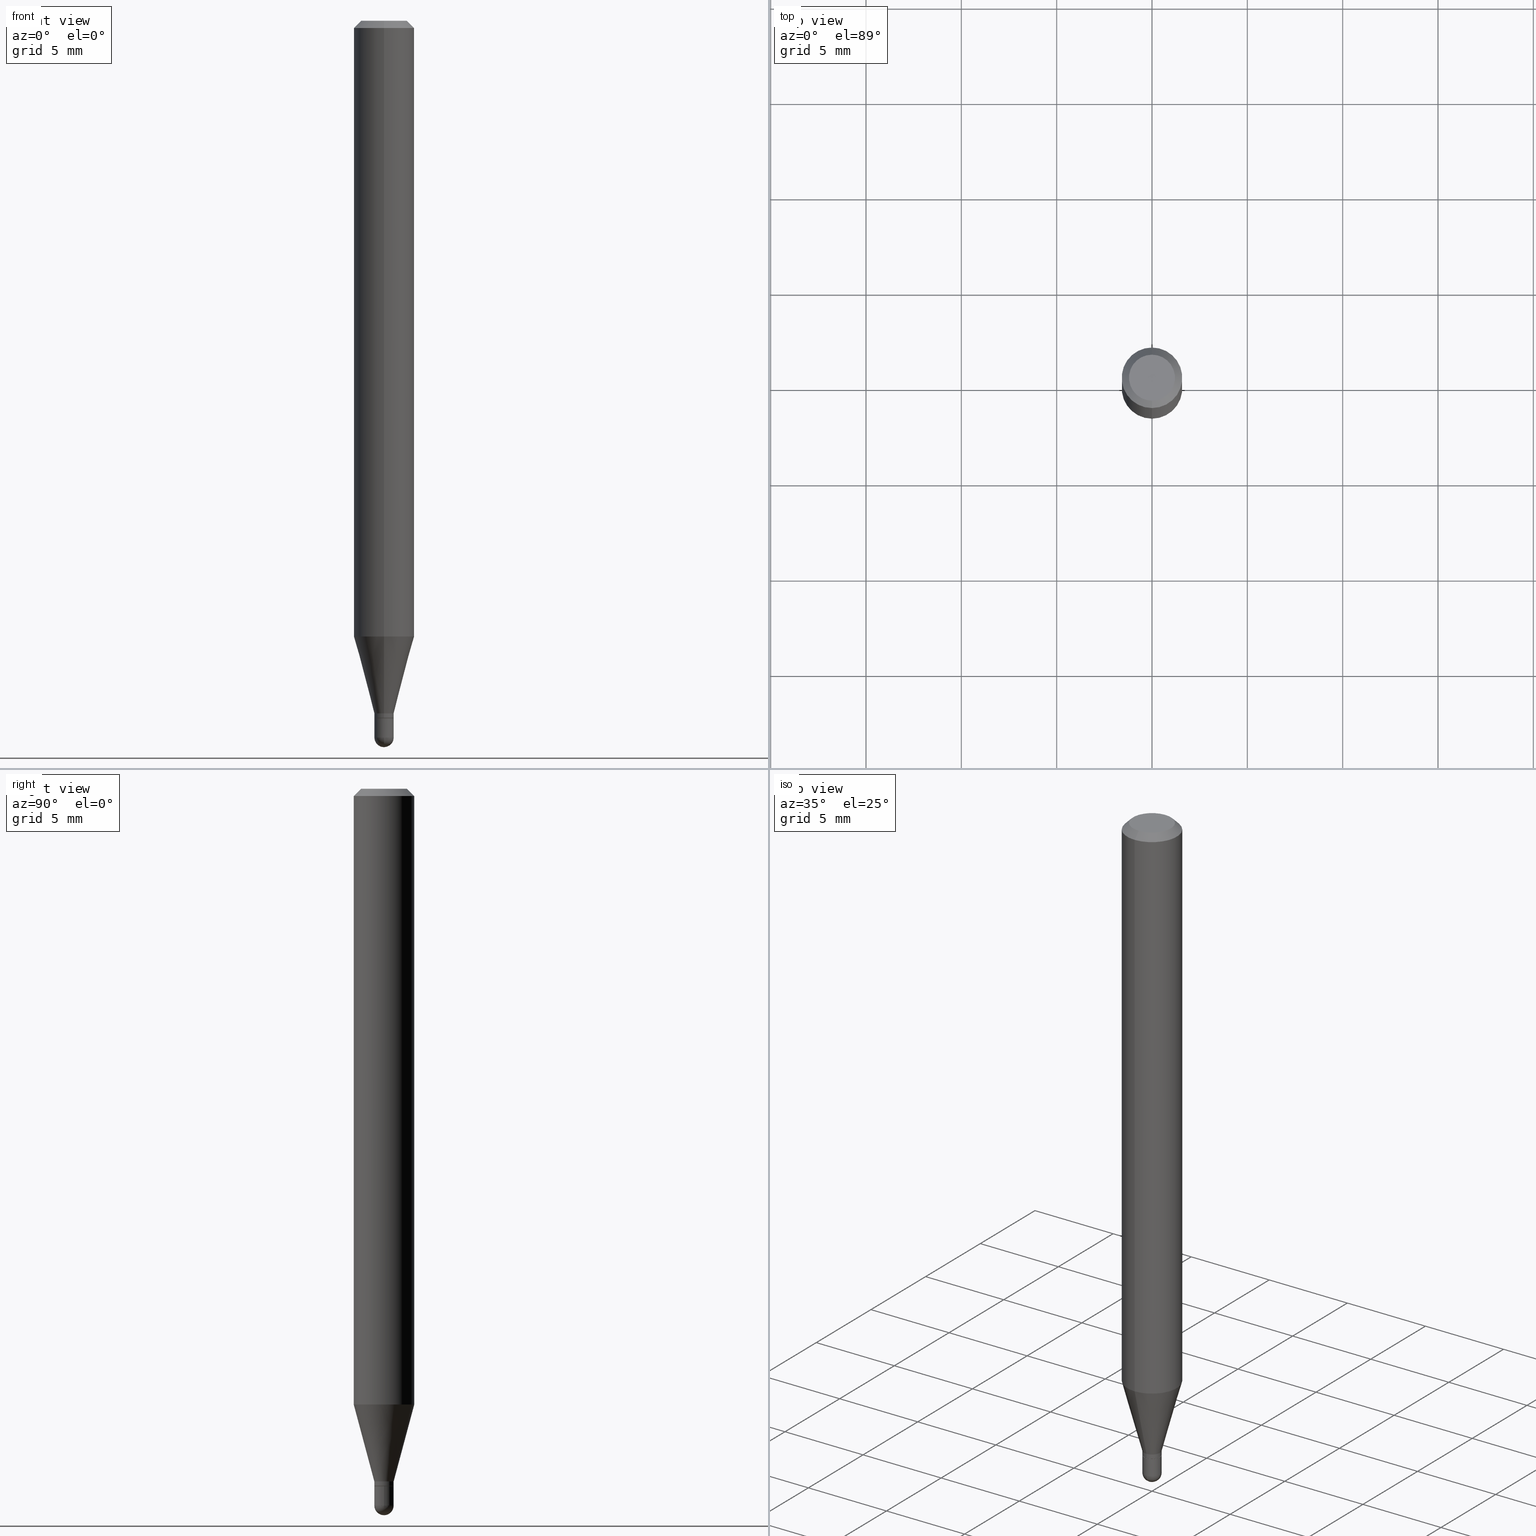
[diagram: canonical four-view strip — front | top / right | iso, engineering-drawing reading convention]
A machine part, canonical four-view strip (front | top / right | iso — engineering-drawing reading convention). The complete STEP part file that produces these views, byte-faithful:
ISO-10303-21;
HEADER;
FILE_DESCRIPTION (( 'STEP AP203' ),
    '1' );
FILE_NAME ('00704.STEP',
    '2024-03-07T18:04:11',
    ( '' ),
    ( '' ),
    'SwSTEP 2.0',
    'SolidWorks 2023',
    '' );
FILE_SCHEMA (( 'CONFIG_CONTROL_DESIGN' ));
ENDSEC;

DATA;
#1 = FACE_OUTER_BOUND ( 'NONE', #425, .T. ) ;
#2 = PRODUCT ( '00704', '00704', '', ( #97 ) ) ;
#3 = ORIENTED_EDGE ( 'NONE', *, *, #339, .T. ) ;
#4 = CARTESIAN_POINT ( 'NONE',  ( 3.521452961119763567E-29, -5.027764804727856594E-15, -1.440000000000000169 ) ) ;
#5 = EDGE_LOOP ( 'NONE', ( #103, #487, #40, #312 ) ) ;
#6 = CYLINDRICAL_SURFACE ( 'NONE', #8, 0.06250000000000000000 ) ;
#7 = DIRECTION ( 'NONE',  ( -6.982962677686265133E-15, -1.000000000000000000, 0.000000000000000000 ) ) ;
#8 = AXIS2_PLACEMENT_3D ( 'NONE', #75, #351, #357 ) ;
#9 = APPROVAL_PERSON_ORGANIZATION ( #66, #408, #27 ) ;
#10 = EDGE_LOOP ( 'NONE', ( #434, #107, #123, #349 ) ) ;
#11 = APPROVAL_DATE_TIME ( #93, #395 ) ;
#12 = DIRECTION ( 'NONE',  ( -2.445453445222057768E-29, 3.491503336616566334E-15, 1.000000000000000000 ) ) ;
#13 = CARTESIAN_POINT ( 'NONE',  ( -3.773273898774340269E-16, -0.04749999999999999362, 1.569871337916932575E-16 ) ) ;
#14 = CARTESIAN_POINT ( 'NONE',  ( 2.166494383139893179E-46, -3.093218716665086637E-32, -8.859274697593624976E-18 ) ) ;
#15 = ORIENTED_EDGE ( 'NONE', *, *, #494, .T. ) ;
#16 = DIRECTION ( 'NONE',  ( 4.937700262164548042E-15, 0.7071067811865451302, -0.7071067811865499042 ) ) ;
#17 = CC_DESIGN_PERSON_AND_ORGANIZATION_ASSIGNMENT ( #223, #33, ( #313 ) ) ;
#18 = VERTEX_POINT ( 'NONE', #424 ) ;
#19 = DIRECTION ( 'NONE',  ( -2.445468806185136597E-29, 3.491481338843145583E-15, 1.000000000000000000 ) ) ;
#20 = CONICAL_SURFACE ( 'NONE', #462, 0.01949999999999999997, 0.7853981633974739252 ) ;
#21 = DIRECTION ( 'NONE',  ( -2.445453445222057768E-29, 3.491503336616566334E-15, 1.000000000000000000 ) ) ;
#22 = UNCERTAINTY_MEASURE_WITH_UNIT (LENGTH_MEASURE( 1.000000000000000082E-05 ), #213, 'distance_accuracy_value', 'NONE');
#23 = EDGE_CURVE ( 'NONE', #127, #438, #104, .T. ) ;
#24 = CLOSED_SHELL ( 'NONE', ( #73, #364, #28, #152, #35 ) ) ;
#25 = AXIS2_PLACEMENT_3D ( 'NONE', #445, #49, #198 ) ;
#26 = APPROVAL_PERSON_ORGANIZATION ( #347, #310, #142 ) ;
#27 = APPROVAL_ROLE ( '' ) ;
#28 = ADVANCED_FACE ( 'NONE', ( #267 ), #176, .F. ) ;
#29 = FACE_OUTER_BOUND ( 'NONE', #450, .T. ) ;
#30 = EDGE_LOOP ( 'NONE', ( #89, #79, #468, #245 ) ) ;
#31 = VECTOR ( 'NONE', #314, 39.37007874015748143 ) ;
#32 = AXIS2_PLACEMENT_3D ( 'NONE', #293, #54, #495 ) ;
#33 = PERSON_AND_ORGANIZATION_ROLE ( 'classification_officer' ) ;
#34 = PERSON ( 'UNSPECIFIED', 'UNSPECIFIED', 'UNSPECIFIED', ('UNSPECIFIED'), ('UNSPECIFIED'), ('UNSPECIFIED') ) ;
#35 = ADVANCED_FACE ( 'NONE', ( #502 ), #348, .T. ) ;
#36 = PERSON_AND_ORGANIZATION ( #34, #225 ) ;
#37 = DIRECTION ( 'NONE',  ( 1.000000000000000000, -6.982962677686265922E-15, 4.876176775795935793E-29 ) ) ;
#38 = CARTESIAN_POINT ( 'NONE',  ( 4.440892098500938748E-16, 0.06249999999999995143, -0.01500000000000022669 ) ) ;
#39 = EDGE_CURVE ( 'NONE', #203, #399, #302, .T. ) ;
#40 = ORIENTED_EDGE ( 'NONE', *, *, #110, .F. ) ;
#41 = CARTESIAN_POINT ( 'NONE',  ( 2.930988785010741768E-16, 0.01999999999999492462, -1.429999999999999938 ) ) ;
#42 = ORIENTED_EDGE ( 'NONE', *, *, #457, .T. ) ;
#43 = EDGE_CURVE ( 'NONE', #182, #509, #508, .T. ) ;
#44 = DIRECTION ( 'NONE',  ( 1.000000000000000000, -6.982962677686284065E-15, 0.000000000000000000 ) ) ;
#45 = LINE ( 'NONE', #458, #216 ) ;
#46 = EDGE_LOOP ( 'NONE', ( #304, #500, #161, #389 ) ) ;
#47 = DIRECTION ( 'NONE',  ( -2.445453445222057488E-29, 3.491503336616566334E-15, 1.000000000000000000 ) ) ;
#48 = DIRECTION ( 'NONE',  ( -6.982962677686265133E-15, -1.000000000000000000, 0.000000000000000000 ) ) ;
#49 = DIRECTION ( 'NONE',  ( -2.445468806185136597E-29, 3.491481338843145583E-15, 1.000000000000000000 ) ) ;
#50 = VECTOR ( 'NONE', #329, 39.37007874015748143 ) ;
#51 = CC_DESIGN_APPROVAL ( #395, ( #313 ) ) ;
#52 = ORIENTED_EDGE ( 'NONE', *, *, #39, .F. ) ;
#53 = CARTESIAN_POINT ( 'NONE',  ( 4.440892098500625669E-16, 0.06250000000000000000, -2.182189585385353959E-16 ) ) ;
#54 = DIRECTION ( 'NONE',  ( -2.445453445222057768E-29, 3.491503336616566334E-15, 1.000000000000000000 ) ) ;
#55 = ORIENTED_EDGE ( 'NONE', *, *, #414, .T. ) ;
#56 = DIRECTION ( 'NONE',  ( 6.982962677686265922E-15, 1.000000000000000000, -3.491503336616566334E-15 ) ) ;
#57 = COORDINATED_UNIVERSAL_TIME_OFFSET ( 5, 0, .BEHIND. ) ;
#58 = FACE_OUTER_BOUND ( 'NONE', #405, .T. ) ;
#59 =( GEOMETRIC_REPRESENTATION_CONTEXT ( 3 ) GLOBAL_UNCERTAINTY_ASSIGNED_CONTEXT ( ( #22 ) ) GLOBAL_UNIT_ASSIGNED_CONTEXT ( ( #213, #61, #296 ) ) REPRESENTATION_CONTEXT ( 'NONE', 'WORKASPACE' ) );
#60 = ADVANCED_FACE ( 'NONE', ( #29 ), #173, .T. ) ;
#61 =( NAMED_UNIT ( * ) PLANE_ANGLE_UNIT ( ) SI_UNIT ( $, .RADIAN. ) );
#62 = CARTESIAN_POINT ( 'NONE',  ( 3.521452961119763567E-29, -5.027764804727856594E-15, -1.440000000000000169 ) ) ;
#63 = AXIS2_PLACEMENT_3D ( 'NONE', #390, #215, #135 ) ;
#64 = AXIS2_PLACEMENT_3D ( 'NONE', #287, #454, #165 ) ;
#65 = EDGE_CURVE ( 'NONE', #189, #399, #272, .T. ) ;
#66 = PERSON_AND_ORGANIZATION ( #34, #225 ) ;
#67 = CARTESIAN_POINT ( 'NONE',  ( 2.166494383139893179E-46, -3.093218716665086637E-32, -8.859274697593624976E-18 ) ) ;
#68 = CYLINDRICAL_SURFACE ( 'NONE', #138, 0.06250000000000000000 ) ;
#69 = DATE_AND_TIME ( #179, #297 ) ;
#70 = ORIENTED_EDGE ( 'NONE', *, *, #414, .F. ) ;
#71 = AXIS2_PLACEMENT_3D ( 'NONE', #158, #292, #419 ) ;
#72 = PERSON_AND_ORGANIZATION_ROLE ( 'creator' ) ;
#73 = ADVANCED_FACE ( 'NONE', ( #481 ), #108, .T. ) ;
#74 = DIRECTION ( 'NONE',  ( -2.445453445222057768E-29, 3.491503336616566334E-15, 1.000000000000000000 ) ) ;
#75 = CARTESIAN_POINT ( 'NONE',  ( 0.000000000000000000, 0.000000000000000000, 0.000000000000000000 ) ) ;
#76 = ORIENTED_EDGE ( 'NONE', *, *, #259, .T. ) ;
#77 = EDGE_CURVE ( 'NONE', #331, #141, #378, .T. ) ;
#78 = DIRECTION ( 'NONE',  ( 1.000000000000000000, -6.982962677686284065E-15, 0.000000000000000000 ) ) ;
#79 = ORIENTED_EDGE ( 'NONE', *, *, #447, .T. ) ;
#80 = CARTESIAN_POINT ( 'NONE',  ( 3.521475080906597305E-29, -5.027733127934130649E-15, -1.440000000000000169 ) ) ;
#81 = ORIENTED_EDGE ( 'NONE', *, *, #464, .T. ) ;
#82 = CARTESIAN_POINT ( 'NONE',  ( -1.361677722148469565E-16, -0.01950000000000502720, -1.440000000000000169 ) ) ;
#83 = CARTESIAN_POINT ( 'NONE',  ( -1.421085471519839497E-16, -0.02000000000000519071, -1.479999999999999982 ) ) ;
#84 = ORIENTED_EDGE ( 'NONE', *, *, #460, .F. ) ;
#85 = CARTESIAN_POINT ( 'NONE',  ( 0.02000000000000000042, -5.167392381487856456E-15, -1.440000000000000169 ) ) ;
#86 = CARTESIAN_POINT ( 'NONE',  ( 3.617583500575643027E-29, -5.169841675086150023E-15, -1.479999999999999982 ) ) ;
#87 = CIRCLE ( 'NONE', #379, 0.01949999999999999997 ) ;
#88 = CC_DESIGN_APPROVAL ( #408, ( #129 ) ) ;
#89 = ORIENTED_EDGE ( 'NONE', *, *, #206, .F. ) ;
#90 = DIRECTION ( 'NONE',  ( -1.000000000000000000, 7.105427357601001070E-15, -4.926315508542082329E-29 ) ) ;
#91 = DIRECTION ( 'NONE',  ( -2.445453445222058048E-29, 3.491503336616566334E-15, 1.000000000000000000 ) ) ;
#92 = CARTESIAN_POINT ( 'NONE',  ( 3.617583500575643027E-29, -5.169841675086150023E-15, -1.479999999999999982 ) ) ;
#93 = DATE_AND_TIME ( #294, #472 ) ;
#94 = CARTESIAN_POINT ( 'NONE',  ( -1.396592535536897664E-16, -0.02000000000000491315, -1.429999999999999938 ) ) ;
#95 = EDGE_CURVE ( 'NONE', #141, #331, #510, .T. ) ;
#96 = AXIS2_PLACEMENT_3D ( 'NONE', #354, #277, #233 ) ;
#97 = MECHANICAL_CONTEXT ( 'NONE', #172, 'mechanical' ) ;
#98 = ADVANCED_FACE ( 'NONE', ( #147 ), #208, .T. ) ;
#99 = APPLICATION_PROTOCOL_DEFINITION ( 'international standard', 'config_control_design', 1994, #172 ) ;
#100 = AXIS2_PLACEMENT_3D ( 'NONE', #254, #162, #7 ) ;
#101 = CARTESIAN_POINT ( 'NONE',  ( -1.361677722148469565E-16, -0.01950000000000502720, -1.440000000000000169 ) ) ;
#102 = ORIENTED_EDGE ( 'NONE', *, *, #386, .T. ) ;
#103 = ORIENTED_EDGE ( 'NONE', *, *, #464, .F. ) ;
#104 = CIRCLE ( 'NONE', #406, 0.04749999999999999362 ) ;
#105 = CONICAL_SURFACE ( 'NONE', #422, 0.01999999999999992062, 0.2617993877991506846 ) ;
#106 = COORDINATED_UNIVERSAL_TIME_OFFSET ( 5, 0, .BEHIND. ) ;
#107 = ORIENTED_EDGE ( 'NONE', *, *, #308, .T. ) ;
#108 = CYLINDRICAL_SURFACE ( 'NONE', #136, 0.02000000000000000042 ) ;
#109 = EDGE_LOOP ( 'NONE', ( #475, #427, #503, #483 ) ) ;
#110 = EDGE_CURVE ( 'NONE', #269, #442, #166, .T. ) ;
#111 = CARTESIAN_POINT ( 'NONE',  ( -4.364351673553605587E-16, -0.06250000000000445477, -1.271387840678323000 ) ) ;
#112 = ORIENTED_EDGE ( 'NONE', *, *, #420, .T. ) ;
#113 = AXIS2_PLACEMENT_3D ( 'NONE', #396, #197, #479 ) ;
#114 = AXIS2_PLACEMENT_3D ( 'NONE', #235, #392, #402 ) ;
#115 = DIRECTION ( 'NONE',  ( -2.445468806185136597E-29, 3.491481338843145583E-15, 1.000000000000000000 ) ) ;
#116 = ORIENTED_EDGE ( 'NONE', *, *, #421, .F. ) ;
#117 = FACE_OUTER_BOUND ( 'NONE', #30, .T. ) ;
#118 = LINE ( 'NONE', #128, #174 ) ;
#119 = ORIENTED_EDGE ( 'NONE', *, *, #436, .F. ) ;
#120 = CARTESIAN_POINT ( 'NONE',  ( -1.396592535537247721E-16, -0.01999999999999992409, 6.983006673233105945E-17 ) ) ;
#121 = LINE ( 'NONE', #184, #155 ) ;
#122 = CARTESIAN_POINT ( 'NONE',  ( 3.667348042988525507E-29, -5.238446655063865749E-15, -1.500000000000000222 ) ) ;
#123 = ORIENTED_EDGE ( 'NONE', *, *, #417, .T. ) ;
#124 = DIRECTION ( 'NONE',  ( -2.445453445222057768E-29, 3.491503336616566334E-15, 1.000000000000000000 ) ) ;
#125 = DIRECTION ( 'NONE',  ( -1.000000000000000000, 6.982962677686265922E-15, -4.883557194083112340E-29 ) ) ;
#126 = VECTOR ( 'NONE', #170, 39.37007874015748143 ) ;
#127 = VERTEX_POINT ( 'NONE', #13 ) ;
#128 = CARTESIAN_POINT ( 'NONE',  ( 1.385558334732547143E-16, 0.01949999999999496927, -1.440000000000000169 ) ) ;
#129 = PRODUCT_DEFINITION ( 'UNKNOWN', '', #452, #288 ) ;
#130 = DIRECTION ( 'NONE',  ( -6.982962677686266711E-15, -1.000000000000000000, 3.491503336616566334E-15 ) ) ;
#131 = VECTOR ( 'NONE', #324, 39.37007874015748143 ) ;
#132 = AXIS2_PLACEMENT_3D ( 'NONE', #156, #400, #441 ) ;
#133 = AXIS2_PLACEMENT_3D ( 'NONE', #341, #171, #305 ) ;
#134 = PERSON_AND_ORGANIZATION ( #34, #225 ) ;
#135 = DIRECTION ( 'NONE',  ( 1.000000000000000000, -6.982962677686265922E-15, 4.876176775795935793E-29 ) ) ;
#136 = AXIS2_PLACEMENT_3D ( 'NONE', #365, #439, #37 ) ;
#137 = ORIENTED_EDGE ( 'NONE', *, *, #429, .F. ) ;
#138 = AXIS2_PLACEMENT_3D ( 'NONE', #220, #426, #301 ) ;
#139 = DIRECTION ( 'NONE',  ( -6.982962677686264344E-15, -1.000000000000000000, 0.000000000000000000 ) ) ;
#140 = CALENDAR_DATE ( 2024, 7, 3 ) ;
#141 = VERTEX_POINT ( 'NONE', #474 ) ;
#142 = APPROVAL_ROLE ( '' ) ;
#143 = CARTESIAN_POINT ( 'NONE',  ( -4.364351673553916201E-16, -0.06250000000000000000, 2.182189585385353959E-16 ) ) ;
#144 = VERTEX_POINT ( 'NONE', #38 ) ;
#145 = CIRCLE ( 'NONE', #32, 0.06250000000000000000 ) ;
#146 = CC_DESIGN_SECURITY_CLASSIFICATION ( #313, ( #452 ) ) ;
#147 = FACE_OUTER_BOUND ( 'NONE', #46, .T. ) ;
#148 = ORIENTED_EDGE ( 'NONE', *, *, #499, .F. ) ;
#149 = EDGE_CURVE ( 'NONE', #465, #141, #437, .T. ) ;
#150 = DIRECTION ( 'NONE',  ( -2.445468806185136597E-29, 3.491481338843145583E-15, 1.000000000000000000 ) ) ;
#151 = ORIENTED_EDGE ( 'NONE', *, *, #43, .F. ) ;
#152 = ADVANCED_FACE ( 'NONE', ( #359 ), #275, .T. ) ;
#153 = DIRECTION ( 'NONE',  ( -2.445453445222057768E-29, 3.491503336616566334E-15, 1.000000000000000000 ) ) ;
#154 = ORIENTED_EDGE ( 'NONE', *, *, #110, .T. ) ;
#155 = VECTOR ( 'NONE', #511, 39.37007874015748143 ) ;
#156 = CARTESIAN_POINT ( 'NONE',  ( 3.668180167833088946E-31, -5.237255004924852262E-17, -0.01500000000000000812 ) ) ;
#157 = ORIENTED_EDGE ( 'NONE', *, *, #149, .F. ) ;
#158 = CARTESIAN_POINT ( 'NONE',  ( 3.496998426667542866E-29, -4.992849771361689794E-15, -1.429999999999999938 ) ) ;
#159 = ADVANCED_FACE ( 'NONE', ( #1 ), #6, .T. ) ;
#160 = DIRECTION ( 'NONE',  ( -6.982962677686264344E-15, -1.000000000000000000, 0.000000000000000000 ) ) ;
#161 = ORIENTED_EDGE ( 'NONE', *, *, #39, .T. ) ;
#162 = DIRECTION ( 'NONE',  ( -2.445453445222057768E-29, 3.491503336616566334E-15, 1.000000000000000000 ) ) ;
#163 = EDGE_LOOP ( 'NONE', ( #271, #282 ) ) ;
#164 = COORDINATED_UNIVERSAL_TIME_OFFSET ( 5, 0, .BEHIND. ) ;
#165 = DIRECTION ( 'NONE',  ( 6.982962677686265922E-15, 1.000000000000000000, -3.483106191921935554E-15 ) ) ;
#166 = CIRCLE ( 'NONE', #253, 0.02000000000000000389 ) ;
#167 = CARTESIAN_POINT ( 'NONE',  ( 0.02000000000000000042, -1.396592535537253145E-16, 9.752353551591871936E-31 ) ) ;
#168 = AXIS2_PLACEMENT_3D ( 'NONE', #409, #124, #368 ) ;
#169 = EDGE_CURVE ( 'NONE', #189, #199, #121, .T. ) ;
#170 = DIRECTION ( 'NONE',  ( -2.445453445222058048E-29, 3.491503336616566334E-15, 1.000000000000000000 ) ) ;
#171 = DIRECTION ( 'NONE',  ( -2.445453445222057768E-29, 3.491503336616566334E-15, 1.000000000000000000 ) ) ;
#172 = APPLICATION_CONTEXT ( 'configuration controlled 3d designs of mechanical parts and assemblies' ) ;
#173 = CONICAL_SURFACE ( 'NONE', #309, 0.01999999999999992062, 0.2617993877991506846 ) ;
#174 = VECTOR ( 'NONE', #459, 39.37007874015748143 ) ;
#175 = DIRECTION ( 'NONE',  ( 1.000000000000000000, 0.000000000000000000, 0.000000000000000000 ) ) ;
#176 = PLANE ( 'NONE',  #374 ) ;
#177 = VECTOR ( 'NONE', #221, 39.37007874015748143 ) ;
#178 = CIRCLE ( 'NONE', #232, 0.02000000000000003511 ) ;
#179 = CALENDAR_DATE ( 2024, 7, 3 ) ;
#180 = DATE_TIME_ROLE ( 'creation_date' ) ;
#181 = DIRECTION ( 'NONE',  ( -1.000000000000000000, 6.982962677686265922E-15, -4.876176775795935793E-29 ) ) ;
#182 = VERTEX_POINT ( 'NONE', #111 ) ;
#183 = SECURITY_CLASSIFICATION_LEVEL ( 'unclassified' ) ;
#184 = CARTESIAN_POINT ( 'NONE',  ( 1.421085471520194731E-16, 0.01999999999999992409, -6.983006673233105945E-17 ) ) ;
#185 = VECTOR ( 'NONE', #237, 39.37007874015748143 ) ;
#186 = APPROVAL_PERSON_ORGANIZATION ( #488, #395, #335 ) ;
#187 = ORIENTED_EDGE ( 'NONE', *, *, #300, .F. ) ;
#188 = CARTESIAN_POINT ( 'NONE',  ( 1.421085471520544049E-16, 0.01999999999999492462, -1.429999999999999938 ) ) ;
#189 = VERTEX_POINT ( 'NONE', #270 ) ;
#190 = CARTESIAN_POINT ( 'NONE',  ( 3.619293833154002365E-29, -5.167392381487854879E-15, -1.479999999999999982 ) ) ;
#191 = CARTESIAN_POINT ( 'NONE',  ( -1.396592535536900376E-16, -0.02000000000000502071, -1.439500000000000224 ) ) ;
#192 = ORIENTED_EDGE ( 'NONE', *, *, #169, .T. ) ;
#193 = EDGE_CURVE ( 'NONE', #144, #509, #295, .T. ) ;
#194 = AXIS2_PLACEMENT_3D ( 'NONE', #482, #19, #244 ) ;
#195 = DIRECTION ( 'NONE',  ( -6.982962677686265922E-15, -1.000000000000000000, 3.491503336616566334E-15 ) ) ;
#196 = CIRCLE ( 'NONE', #71, 0.01999999999999992062 ) ;
#197 = DIRECTION ( 'NONE',  ( -2.445453445222057768E-29, 3.491503336616566334E-15, 1.000000000000000000 ) ) ;
#198 = DIRECTION ( 'NONE',  ( 1.000000000000000000, -6.982962677686282488E-15, 0.000000000000000000 ) ) ;
#199 = VERTEX_POINT ( 'NONE', #41 ) ;
#200 = CALENDAR_DATE ( 2024, 7, 3 ) ;
#201 = LINE ( 'NONE', #337, #185 ) ;
#202 = CARTESIAN_POINT ( 'NONE',  ( 3.840629472727447874E-16, 0.04749999999999999362, -1.747056831868805136E-16 ) ) ;
#203 = VERTEX_POINT ( 'NONE', #82 ) ;
#204 = CARTESIAN_POINT ( 'NONE',  ( 0.02000000000000000389, -5.237222008264718177E-15, -1.479999999999999982 ) ) ;
#205 = FACE_OUTER_BOUND ( 'NONE', #306, .T. ) ;
#206 = EDGE_CURVE ( 'NONE', #199, #289, #268, .T. ) ;
#207 = CARTESIAN_POINT ( 'NONE',  ( 3.316907271900976096E-16, 0.04749999999999999362, -1.702760458380836811E-16 ) ) ;
#208 = CONICAL_SURFACE ( 'NONE', #322, 0.01949999999999999997, 0.7853981633974739252 ) ;
#209 = DIRECTION ( 'NONE',  ( -2.445468806185136877E-29, 3.491481338843145188E-15, 1.000000000000000000 ) ) ;
#210 = CIRCLE ( 'NONE', #194, 0.02000000000000000389 ) ;
#211 = DATE_AND_TIME ( #200, #353 ) ;
#212 = DIRECTION ( 'NONE',  ( -2.445453445222057768E-29, 3.491503336616566334E-15, 1.000000000000000000 ) ) ;
#213 =( CONVERSION_BASED_UNIT ( 'INCH', #383 ) LENGTH_UNIT ( ) NAMED_UNIT ( #241 ) );
#214 = MANIFOLD_SOLID_BREP ( 'Body-Move/Copy2[2]', #361 ) ;
#215 = DIRECTION ( 'NONE',  ( -2.445468806185136597E-29, 3.491481338843145583E-15, 1.000000000000000000 ) ) ;
#216 = VECTOR ( 'NONE', #16, 39.37007874015748143 ) ;
#217 = DIRECTION ( 'NONE',  ( 6.982962677686265922E-15, 1.000000000000000000, 0.000000000000000000 ) ) ;
#218 = DIRECTION ( 'NONE',  ( -2.445453445222057768E-29, 3.491503336616566334E-15, 1.000000000000000000 ) ) ;
#219 = EDGE_CURVE ( 'NONE', #18, #203, #431, .T. ) ;
#220 = CARTESIAN_POINT ( 'NONE',  ( 0.000000000000000000, 0.000000000000000000, 0.000000000000000000 ) ) ;
#221 = DIRECTION ( 'NONE',  ( -4.937700262164674260E-15, -0.7071067811865632269, 0.7071067811865319186 ) ) ;
#222 = ADVANCED_FACE ( 'NONE', ( #320 ), #471, .T. ) ;
#223 = PERSON_AND_ORGANIZATION ( #34, #225 ) ;
#224 = ORIENTED_EDGE ( 'NONE', *, *, #460, .T. ) ;
#225 = ORGANIZATION ( 'UNSPECIFIED', 'UNSPECIFIED', '' ) ;
#226 = COORDINATED_UNIVERSAL_TIME_OFFSET ( 5, 0, .BEHIND. ) ;
#227 = CARTESIAN_POINT ( 'NONE',  ( 1.396592535537605421E-16, 0.01999999999999497319, -1.440000000000000169 ) ) ;
#228 = ADVANCED_FACE ( 'NONE', ( #117 ), #105, .T. ) ;
#229 = DIRECTION ( 'NONE',  ( -6.982962677686264344E-15, -1.000000000000000000, 0.000000000000000000 ) ) ;
#230 = DIRECTION ( 'NONE',  ( 1.000000000000000000, -6.982962677686282488E-15, 0.000000000000000000 ) ) ;
#231 = ORIENTED_EDGE ( 'NONE', *, *, #95, .F. ) ;
#232 = AXIS2_PLACEMENT_3D ( 'NONE', #260, #501, #217 ) ;
#233 = DIRECTION ( 'NONE',  ( 6.982962677686265922E-15, 1.000000000000000000, 0.000000000000000000 ) ) ;
#234 = EDGE_LOOP ( 'NONE', ( #491, #403 ) ) ;
#235 = CARTESIAN_POINT ( 'NONE',  ( 3.668180167833088946E-31, -5.237255004924852262E-17, -0.01500000000000000812 ) ) ;
#236 = ORIENTED_EDGE ( 'NONE', *, *, #285, .F. ) ;
#237 = DIRECTION ( 'NONE',  ( -4.851104656540964275E-15, -0.7071067811865500152, -0.7071067811865450192 ) ) ;
#238 = CARTESIAN_POINT ( 'NONE',  ( 3.496998426667542866E-29, -4.992849771361689794E-15, -1.429999999999999938 ) ) ;
#239 = DIRECTION ( 'NONE',  ( 2.445453445222057488E-29, -3.491503336616566334E-15, -1.000000000000000000 ) ) ;
#240 = ORIENTED_EDGE ( 'NONE', *, *, #429, .T. ) ;
#241 = DIMENSIONAL_EXPONENTS ( 1.000000000000000000, 0.000000000000000000, 0.000000000000000000, 0.000000000000000000, 0.000000000000000000, 0.000000000000000000, 0.000000000000000000 ) ;
#242 = AXIS2_PLACEMENT_3D ( 'NONE', #207, #239, #56 ) ;
#243 = CARTESIAN_POINT ( 'NONE',  ( -1.396592535536897664E-16, -0.02000000000000491315, -1.429999999999999938 ) ) ;
#244 = DIRECTION ( 'NONE',  ( 1.000000000000000000, -6.982962677686282488E-15, 0.000000000000000000 ) ) ;
#245 = ORIENTED_EDGE ( 'NONE', *, *, #494, .F. ) ;
#246 = CARTESIAN_POINT ( 'NONE',  ( 0.000000000000000000, 0.000000000000000000, 0.000000000000000000 ) ) ;
#247 = ADVANCED_FACE ( 'NONE', ( #332 ), #496, .F. ) ;
#248 = DIRECTION ( 'NONE',  ( -7.105427357601000281E-15, -1.000000000000000000, 0.000000000000000000 ) ) ;
#249 = LINE ( 'NONE', #120, #126 ) ;
#250 = DIRECTION ( 'NONE',  ( -2.445453445222057768E-29, 3.491503336616566334E-15, 1.000000000000000000 ) ) ;
#251 = DATE_TIME_ROLE ( 'classification_date' ) ;
#252 = CARTESIAN_POINT ( 'NONE',  ( 4.440892098500934804E-16, 0.06249999999999554523, -1.271387840678323444 ) ) ;
#253 = AXIS2_PLACEMENT_3D ( 'NONE', #190, #476, #230 ) ;
#254 = CARTESIAN_POINT ( 'NONE',  ( 3.520230234397152896E-29, -5.026019053059547859E-15, -1.439500000000000224 ) ) ;
#255 = CC_DESIGN_DATE_AND_TIME_ASSIGNMENT ( #211, #251, ( #313 ) ) ;
#256 = DIRECTION ( 'NONE',  ( 0.000000000000000000, 0.000000000000000000, 1.000000000000000000 ) ) ;
#257 = VECTOR ( 'NONE', #385, 39.37007874015748143 ) ;
#258 = AXIS2_PLACEMENT_3D ( 'NONE', #246, #279, #448 ) ;
#259 = EDGE_CURVE ( 'NONE', #278, #199, #196, .T. ) ;
#260 = CARTESIAN_POINT ( 'NONE',  ( 3.617583500575643027E-29, -5.169841675086150023E-15, -1.479999999999999982 ) ) ;
#261 = ORIENTED_EDGE ( 'NONE', *, *, #193, .F. ) ;
#262 = CALENDAR_DATE ( 2024, 7, 3 ) ;
#263 = DIRECTION ( 'NONE',  ( -6.982962677686266711E-15, -1.000000000000000000, 3.491503336616566334E-15 ) ) ;
#264 = AXIS2_PLACEMENT_3D ( 'NONE', #14, #490, #130 ) ;
#265 = CC_DESIGN_APPROVAL ( #310, ( #452 ) ) ;
#266 = DATE_AND_TIME ( #140, #512 ) ;
#267 = FACE_OUTER_BOUND ( 'NONE', #234, .T. ) ;
#268 = LINE ( 'NONE', #188, #131 ) ;
#269 = VERTEX_POINT ( 'NONE', #204 ) ;
#270 = CARTESIAN_POINT ( 'NONE',  ( 1.421085471520541830E-16, 0.01999999999999482747, -1.439500000000000224 ) ) ;
#271 = ORIENTED_EDGE ( 'NONE', *, *, #420, .F. ) ;
#272 = CIRCLE ( 'NONE', #113, 0.01999999999999992409 ) ;
#273 = CONICAL_SURFACE ( 'NONE', #64, 0.06250000000000000000, 0.7853981633974483900 ) ;
#274 = CC_DESIGN_PERSON_AND_ORGANIZATION_ASSIGNMENT ( #391, #505, ( #452 ) ) ;
#275 = SPHERICAL_SURFACE ( 'NONE', #96, 0.02000000000000003511 ) ;
#276 = ORIENTED_EDGE ( 'NONE', *, *, #417, .F. ) ;
#277 = DIRECTION ( 'NONE',  ( -1.000000000000000000, 6.982962677686265922E-15, -4.883557194083112340E-29 ) ) ;
#278 = VERTEX_POINT ( 'NONE', #243 ) ;
#279 = DIRECTION ( 'NONE',  ( -2.445453445222057768E-29, 3.491503336616566334E-15, 1.000000000000000000 ) ) ;
#280 = CARTESIAN_POINT ( 'NONE',  ( 3.521452961119763567E-29, -5.027764804727856594E-15, -1.440000000000000169 ) ) ;
#281 = DIRECTION ( 'NONE',  ( -2.445468806185136597E-29, 3.491481338843145583E-15, 1.000000000000000000 ) ) ;
#282 = ORIENTED_EDGE ( 'NONE', *, *, #219, .F. ) ;
#283 = CC_DESIGN_PERSON_AND_ORGANIZATION_ASSIGNMENT ( #134, #299, ( #2 ) ) ;
#284 = AXIS2_PLACEMENT_3D ( 'NONE', #317, #115, #78 ) ;
#285 = EDGE_CURVE ( 'NONE', #289, #144, #443, .T. ) ;
#286 = CIRCLE ( 'NONE', #168, 0.06250000000000000000 ) ;
#287 = CARTESIAN_POINT ( 'NONE',  ( 3.668180167833088946E-31, -5.237255004924852262E-17, -0.01500000000000000812 ) ) ;
#288 = DESIGN_CONTEXT ( 'detailed design', #492, 'design' ) ;
#289 = VERTEX_POINT ( 'NONE', #252 ) ;
#290 = CARTESIAN_POINT ( 'NONE',  ( 0.000000000000000000, 0.000000000000000000, 0.000000000000000000 ) ) ;
#291 = DIRECTION ( 'NONE',  ( 1.000000000000000000, -6.982962677686282488E-15, 0.000000000000000000 ) ) ;
#292 = DIRECTION ( 'NONE',  ( -2.445453445222057768E-29, 3.491503336616566334E-15, 1.000000000000000000 ) ) ;
#293 = CARTESIAN_POINT ( 'NONE',  ( 3.668180167833088946E-31, -5.237255004924852262E-17, -0.01500000000000000812 ) ) ;
#294 = CALENDAR_DATE ( 2024, 7, 3 ) ;
#295 = CIRCLE ( 'NONE', #132, 0.06250000000000000000 ) ;
#296 =( NAMED_UNIT ( * ) SI_UNIT ( $, .STERADIAN. ) SOLID_ANGLE_UNIT ( ) );
#297 = LOCAL_TIME ( 13, 4, 11.00000000000000000, #106 ) ;
#298 = CC_DESIGN_DATE_AND_TIME_ASSIGNMENT ( #428, #180, ( #129 ) ) ;
#299 = PERSON_AND_ORGANIZATION_ROLE ( 'design_owner' ) ;
#300 = EDGE_CURVE ( 'NONE', #399, #278, #249, .T. ) ;
#301 = DIRECTION ( 'NONE',  ( -6.982962677686265922E-15, -1.000000000000000000, 3.491503336616566334E-15 ) ) ;
#302 = LINE ( 'NONE', #101, #177 ) ;
#303 = CIRCLE ( 'NONE', #388, 0.01999999999999992062 ) ;
#304 = ORIENTED_EDGE ( 'NONE', *, *, #373, .F. ) ;
#305 = DIRECTION ( 'NONE',  ( -6.982962677686265922E-15, -1.000000000000000000, 4.370956789862821150E-15 ) ) ;
#306 = EDGE_LOOP ( 'NONE', ( #148, #81, #116, #70 ) ) ;
#307 = APPROVAL_STATUS ( 'not_yet_approved' ) ;
#308 = EDGE_CURVE ( 'NONE', #127, #509, #201, .T. ) ;
#309 = AXIS2_PLACEMENT_3D ( 'NONE', #238, #404, #48 ) ;
#310 = APPROVAL ( #307, 'UNSPECIFIED' ) ;
#311 = VECTOR ( 'NONE', #91, 39.37007874015748143 ) ;
#312 = ORIENTED_EDGE ( 'NONE', *, *, #380, .F. ) ;
#313 = SECURITY_CLASSIFICATION ( '', '', #183 ) ;
#314 = DIRECTION ( 'NONE',  ( -2.445468806185136877E-29, 3.491481338843145188E-15, 1.000000000000000000 ) ) ;
#315 = EDGE_LOOP ( 'NONE', ( #236, #15, #358, #261 ) ) ;
#316 = ADVANCED_FACE ( 'NONE', ( #415 ), #363, .T. ) ;
#317 = CARTESIAN_POINT ( 'NONE',  ( 3.521475080906597305E-29, -5.027733127934130649E-15, -1.440000000000000169 ) ) ;
#318 = EDGE_LOOP ( 'NONE', ( #55, #430, #355, #326, #154 ) ) ;
#319 = ADVANCED_FACE ( 'NONE', ( #327 ), #484, .T. ) ;
#320 = FACE_OUTER_BOUND ( 'NONE', #10, .T. ) ;
#321 = ORIENTED_EDGE ( 'NONE', *, *, #380, .T. ) ;
#322 = AXIS2_PLACEMENT_3D ( 'NONE', #280, #444, #229 ) ;
#323 = AXIS2_PLACEMENT_3D ( 'NONE', #463, #256, #175 ) ;
#324 = DIRECTION ( 'NONE',  ( 1.839019923739603076E-15, 0.2588190451025253469, 0.9659258262890670910 ) ) ;
#325 = SPHERICAL_SURFACE ( 'NONE', #338, 0.02000000000000003511 ) ;
#326 = ORIENTED_EDGE ( 'NONE', *, *, #386, .F. ) ;
#327 = FACE_OUTER_BOUND ( 'NONE', #109, .T. ) ;
#328 = CARTESIAN_POINT ( 'NONE',  ( 3.496998426667542866E-29, -4.992849771361689794E-15, -1.429999999999999938 ) ) ;
#329 = DIRECTION ( 'NONE',  ( -1.807323732225332900E-15, -0.2588190451025185745, 0.9659258262890689783 ) ) ;
#330 = CC_DESIGN_PERSON_AND_ORGANIZATION_ASSIGNMENT ( #350, #72, ( #129 ) ) ;
#331 = VERTEX_POINT ( 'NONE', #85 ) ;
#332 = FACE_OUTER_BOUND ( 'NONE', #163, .T. ) ;
#333 = LINE ( 'NONE', #167, #352 ) ;
#334 = EDGE_LOOP ( 'NONE', ( #224, #192, #410, #187 ) ) ;
#335 = APPROVAL_ROLE ( '' ) ;
#336 = DIRECTION ( 'NONE',  ( -6.982962677686264344E-15, -1.000000000000000000, 0.000000000000000000 ) ) ;
#337 = CARTESIAN_POINT ( 'NONE',  ( -4.287811248607203282E-16, -0.06250000000000005551, -0.01499999999999979128 ) ) ;
#338 = AXIS2_PLACEMENT_3D ( 'NONE', #86, #125, #372 ) ;
#339 = EDGE_CURVE ( 'NONE', #182, #289, #286, .T. ) ;
#340 = DIRECTION ( 'NONE',  ( 2.438088387897960049E-29, -3.491481338843145188E-15, -1.000000000000000000 ) ) ;
#341 = CARTESIAN_POINT ( 'NONE',  ( 3.109119775200238315E-29, -4.439054887862097142E-15, -1.271387840678323222 ) ) ;
#342 = EDGE_LOOP ( 'NONE', ( #157, #345, #321, #102, #231 ) ) ;
#343 = ORIENTED_EDGE ( 'NONE', *, *, #206, .T. ) ;
#344 = COORDINATED_UNIVERSAL_TIME_OFFSET ( 5, 0, .BEHIND. ) ;
#345 = ORIENTED_EDGE ( 'NONE', *, *, #421, .T. ) ;
#346 = ADVANCED_FACE ( 'NONE', ( #489 ), #273, .T. ) ;
#347 = PERSON_AND_ORGANIZATION ( #34, #225 ) ;
#348 = CYLINDRICAL_SURFACE ( 'NONE', #63, 0.02000000000000000042 ) ;
#349 = ORIENTED_EDGE ( 'NONE', *, *, #457, .F. ) ;
#350 = PERSON_AND_ORGANIZATION ( #34, #225 ) ;
#351 = DIRECTION ( 'NONE',  ( -2.445453445222057768E-29, 3.491503336616566334E-15, 1.000000000000000000 ) ) ;
#352 = VECTOR ( 'NONE', #209, 39.37007874015748143 ) ;
#353 = LOCAL_TIME ( 13, 4, 11.00000000000000000, #164 ) ;
#354 = CARTESIAN_POINT ( 'NONE',  ( 3.617583500575643027E-29, -5.169841675086150023E-15, -1.479999999999999982 ) ) ;
#355 = ORIENTED_EDGE ( 'NONE', *, *, #77, .F. ) ;
#356 = ADVANCED_FACE ( 'NONE', ( #58 ), #456, .F. ) ;
#357 = DIRECTION ( 'NONE',  ( -6.982962677686265922E-15, -1.000000000000000000, 3.491503336616566334E-15 ) ) ;
#358 = ORIENTED_EDGE ( 'NONE', *, *, #43, .T. ) ;
#359 = FACE_OUTER_BOUND ( 'NONE', #5, .T. ) ;
#360 = ORIENTED_EDGE ( 'NONE', *, *, #285, .T. ) ;
#361 = CLOSED_SHELL ( 'NONE', ( #316, #478, #222, #159, #60, #228, #504, #346, #356, #247, #98, #319 ) ) ;
#362 = CIRCLE ( 'NONE', #25, 0.02000000000000000389 ) ;
#363 = CYLINDRICAL_SURFACE ( 'NONE', #432, 0.01999999999999992409 ) ;
#364 = ADVANCED_FACE ( 'NONE', ( #205 ), #325, .T. ) ;
#365 = CARTESIAN_POINT ( 'NONE',  ( 0.000000000000000000, 0.000000000000000000, 0.000000000000000000 ) ) ;
#366 = CARTESIAN_POINT ( 'NONE',  ( 3.619293833154002365E-29, -5.167392381487854879E-15, -1.479999999999999982 ) ) ;
#367 = ORIENTED_EDGE ( 'NONE', *, *, #23, .T. ) ;
#368 = DIRECTION ( 'NONE',  ( -6.982962677686265922E-15, -1.000000000000000000, 4.370956789862821150E-15 ) ) ;
#369 = DIRECTION ( 'NONE',  ( -6.982962677686265133E-15, -1.000000000000000000, 0.000000000000000000 ) ) ;
#370 = ORIENTED_EDGE ( 'NONE', *, *, #339, .F. ) ;
#371 = DIRECTION ( 'NONE',  ( -6.982962677686265133E-15, -1.000000000000000000, 3.491503336616566334E-15 ) ) ;
#372 = DIRECTION ( 'NONE',  ( 6.982962677686265922E-15, 1.000000000000000000, 0.000000000000000000 ) ) ;
#373 = EDGE_CURVE ( 'NONE', #18, #189, #118, .T. ) ;
#374 = AXIS2_PLACEMENT_3D ( 'NONE', #227, #340, #181 ) ;
#375 = CARTESIAN_POINT ( 'NONE',  ( 3.521452961119763567E-29, -5.027764804727856594E-15, -1.440000000000000169 ) ) ;
#376 = CARTESIAN_POINT ( 'NONE',  ( 3.521452961119763567E-29, -5.027764804727856594E-15, -1.440000000000000169 ) ) ;
#377 = CARTESIAN_POINT ( 'NONE',  ( -4.364351673553912750E-16, -0.06250000000000005551, -0.01499999999999979128 ) ) ;
#378 = CIRCLE ( 'NONE', #397, 0.02000000000000000042 ) ;
#379 = AXIS2_PLACEMENT_3D ( 'NONE', #375, #21, #336 ) ;
#380 = EDGE_CURVE ( 'NONE', #401, #269, #210, .T. ) ;
#381 = LOCAL_TIME ( 13, 4, 11.00000000000000000, #226 ) ;
#382 = APPROVAL_STATUS ( 'not_yet_approved' ) ;
#383 = LENGTH_MEASURE_WITH_UNIT ( LENGTH_MEASURE( 0.02539999999999999897 ), #467 );
#384 = ADVANCED_BREP_SHAPE_REPRESENTATION ( '00704', ( #393, #214, #323 ), #59 ) ;
#385 = DIRECTION ( 'NONE',  ( -2.445453445222058048E-29, 3.491503336616566334E-15, 1.000000000000000000 ) ) ;
#386 = EDGE_CURVE ( 'NONE', #269, #331, #333, .T. ) ;
#387 = PERSON_AND_ORGANIZATION_ROLE ( 'design_supplier' ) ;
#388 = AXIS2_PLACEMENT_3D ( 'NONE', #449, #250, #369 ) ;
#389 = ORIENTED_EDGE ( 'NONE', *, *, #65, .F. ) ;
#390 = CARTESIAN_POINT ( 'NONE',  ( 0.000000000000000000, 0.000000000000000000, 0.000000000000000000 ) ) ;
#391 = PERSON_AND_ORGANIZATION ( #34, #225 ) ;
#392 = DIRECTION ( 'NONE',  ( 2.445453445222057768E-29, -3.491503336616566334E-15, -1.000000000000000000 ) ) ;
#393 = MANIFOLD_SOLID_BREP ( 'Body-Move/Copy2[1]', #24 ) ;
#394 = PRODUCT_DEFINITION_SHAPE ( 'NONE', 'NONE',  #129 ) ;
#395 = APPROVAL ( #453, 'UNSPECIFIED' ) ;
#396 = CARTESIAN_POINT ( 'NONE',  ( 3.520230234397152896E-29, -5.026019053059547859E-15, -1.439500000000000224 ) ) ;
#397 = AXIS2_PLACEMENT_3D ( 'NONE', #80, #150, #44 ) ;
#398 = AXIS2_PLACEMENT_3D ( 'NONE', #92, #90, #248 ) ;
#399 = VERTEX_POINT ( 'NONE', #191 ) ;
#400 = DIRECTION ( 'NONE',  ( -2.445453445222057768E-29, 3.491503336616566334E-15, 1.000000000000000000 ) ) ;
#401 = VERTEX_POINT ( 'NONE', #83 ) ;
#402 = DIRECTION ( 'NONE',  ( 6.982962677686265922E-15, 1.000000000000000000, -3.483106191921935554E-15 ) ) ;
#403 = ORIENTED_EDGE ( 'NONE', *, *, #95, .T. ) ;
#404 = DIRECTION ( 'NONE',  ( -2.445453445222057768E-29, 3.491503336616566334E-15, 1.000000000000000000 ) ) ;
#405 = EDGE_LOOP ( 'NONE', ( #240, #367 ) ) ;
#406 = AXIS2_PLACEMENT_3D ( 'NONE', #67, #218, #263 ) ;
#407 = AXIS2_PLACEMENT_3D ( 'NONE', #366, #281, #291 ) ;
#408 = APPROVAL ( #382, 'UNSPECIFIED' ) ;
#409 = CARTESIAN_POINT ( 'NONE',  ( 3.109119775200238315E-29, -4.439054887862097142E-15, -1.271387840678323222 ) ) ;
#410 = ORIENTED_EDGE ( 'NONE', *, *, #259, .F. ) ;
#411 = ORIENTED_EDGE ( 'NONE', *, *, #193, .T. ) ;
#412 = DIRECTION ( 'NONE',  ( -6.982962677686265133E-15, -1.000000000000000000, 0.000000000000000000 ) ) ;
#413 = CARTESIAN_POINT ( 'NONE',  ( -0.02000000000000000389, -4.955454207558972206E-15, -1.479999999999999982 ) ) ;
#414 = EDGE_CURVE ( 'NONE', #442, #465, #362, .T. ) ;
#415 = FACE_OUTER_BOUND ( 'NONE', #334, .T. ) ;
#416 = FACE_OUTER_BOUND ( 'NONE', #440, .T. ) ;
#417 = EDGE_CURVE ( 'NONE', #509, #144, #145, .T. ) ;
#418 = CIRCLE ( 'NONE', #133, 0.06250000000000000000 ) ;
#419 = DIRECTION ( 'NONE',  ( -6.982962677686265133E-15, -1.000000000000000000, 0.000000000000000000 ) ) ;
#420 = EDGE_CURVE ( 'NONE', #203, #18, #87, .T. ) ;
#421 = EDGE_CURVE ( 'NONE', #465, #401, #498, .T. ) ;
#422 = AXIS2_PLACEMENT_3D ( 'NONE', #328, #74, #412 ) ;
#423 = APPLICATION_PROTOCOL_DEFINITION ( 'international standard', 'config_control_design', 1994, #492 ) ;
#424 = CARTESIAN_POINT ( 'NONE',  ( 1.403321903126546705E-16, 0.01949999999999496927, -1.440000000000000169 ) ) ;
#425 = EDGE_LOOP ( 'NONE', ( #3, #360, #276, #151 ) ) ;
#426 = DIRECTION ( 'NONE',  ( -2.445453445222057768E-29, 3.491503336616566334E-15, 1.000000000000000000 ) ) ;
#427 = ORIENTED_EDGE ( 'NONE', *, *, #65, .T. ) ;
#428 = DATE_AND_TIME ( #262, #381 ) ;
#429 = EDGE_CURVE ( 'NONE', #438, #127, #451, .T. ) ;
#430 = ORIENTED_EDGE ( 'NONE', *, *, #149, .T. ) ;
#431 = CIRCLE ( 'NONE', #497, 0.01949999999999999997 ) ;
#432 = AXIS2_PLACEMENT_3D ( 'NONE', #290, #12, #371 ) ;
#433 = AXIS2_PLACEMENT_3D ( 'NONE', #376, #47, #195 ) ;
#434 = ORIENTED_EDGE ( 'NONE', *, *, #23, .F. ) ;
#435 = APPROVAL_DATE_TIME ( #266, #310 ) ;
#436 = EDGE_CURVE ( 'NONE', #278, #182, #455, .T. ) ;
#437 = LINE ( 'NONE', #485, #31 ) ;
#438 = VERTEX_POINT ( 'NONE', #202 ) ;
#439 = DIRECTION ( 'NONE',  ( -2.445468806185136597E-29, 3.491481338843145583E-15, 1.000000000000000000 ) ) ;
#440 = EDGE_LOOP ( 'NONE', ( #112, #477, #84, #52 ) ) ;
#441 = DIRECTION ( 'NONE',  ( -6.982962677686265922E-15, -1.000000000000000000, 3.483106191921935554E-15 ) ) ;
#442 = VERTEX_POINT ( 'NONE', #486 ) ;
#443 = LINE ( 'NONE', #53, #311 ) ;
#444 = DIRECTION ( 'NONE',  ( -2.445453445222057768E-29, 3.491503336616566334E-15, 1.000000000000000000 ) ) ;
#445 = CARTESIAN_POINT ( 'NONE',  ( 3.619293833154002365E-29, -5.167392381487854879E-15, -1.479999999999999982 ) ) ;
#446 = VERTEX_POINT ( 'NONE', #122 ) ;
#447 = EDGE_CURVE ( 'NONE', #199, #278, #303, .T. ) ;
#448 = DIRECTION ( 'NONE',  ( -6.982962677686265133E-15, -1.000000000000000000, 3.491503336616566334E-15 ) ) ;
#449 = CARTESIAN_POINT ( 'NONE',  ( 3.496998426667542866E-29, -4.992849771361689794E-15, -1.429999999999999938 ) ) ;
#450 = EDGE_LOOP ( 'NONE', ( #76, #343, #370, #119 ) ) ;
#451 = CIRCLE ( 'NONE', #264, 0.04749999999999999362 ) ;
#452 = PRODUCT_DEFINITION_FORMATION_WITH_SPECIFIED_SOURCE ( 'ANY', '', #2, .NOT_KNOWN. ) ;
#453 = APPROVAL_STATUS ( 'not_yet_approved' ) ;
#454 = DIRECTION ( 'NONE',  ( 2.445453445222057768E-29, -3.491503336616566334E-15, -1.000000000000000000 ) ) ;
#455 = LINE ( 'NONE', #94, #50 ) ;
#456 = PLANE ( 'NONE',  #242 ) ;
#457 = EDGE_CURVE ( 'NONE', #438, #144, #45, .T. ) ;
#458 = CARTESIAN_POINT ( 'NONE',  ( 4.364351673553919652E-16, 0.06249999999999995143, -0.01500000000000022669 ) ) ;
#459 = DIRECTION ( 'NONE',  ( 5.024295867788190974E-15, 0.7071067811865681119, 0.7071067811865270336 ) ) ;
#460 = EDGE_CURVE ( 'NONE', #399, #189, #493, .T. ) ;
#461 = SHAPE_DEFINITION_REPRESENTATION ( #394, #384 ) ;
#462 = AXIS2_PLACEMENT_3D ( 'NONE', #62, #212, #139 ) ;
#463 = CARTESIAN_POINT ( 'NONE',  ( 0.000000000000000000, 0.000000000000000000, 0.000000000000000000 ) ) ;
#464 = EDGE_CURVE ( 'NONE', #446, #401, #466, .T. ) ;
#465 = VERTEX_POINT ( 'NONE', #413 ) ;
#466 = CIRCLE ( 'NONE', #398, 0.02000000000000003511 ) ;
#467 =( LENGTH_UNIT ( ) NAMED_UNIT ( * ) SI_UNIT ( $, .METRE. ) );
#468 = ORIENTED_EDGE ( 'NONE', *, *, #436, .T. ) ;
#469 = PRODUCT_RELATED_PRODUCT_CATEGORY ( 'detail', '', ( #2 ) ) ;
#470 = FACE_OUTER_BOUND ( 'NONE', #315, .T. ) ;
#471 = CONICAL_SURFACE ( 'NONE', #114, 0.06250000000000000000, 0.7853981633974483900 ) ;
#472 = LOCAL_TIME ( 13, 4, 11.00000000000000000, #57 ) ;
#473 = CC_DESIGN_PERSON_AND_ORGANIZATION_ASSIGNMENT ( #36, #387, ( #452 ) ) ;
#474 = CARTESIAN_POINT ( 'NONE',  ( -0.02000000000000000042, -4.955454207558972206E-15, -1.440000000000000169 ) ) ;
#475 = ORIENTED_EDGE ( 'NONE', *, *, #169, .F. ) ;
#476 = DIRECTION ( 'NONE',  ( -2.445468806185136597E-29, 3.491481338843145583E-15, 1.000000000000000000 ) ) ;
#477 = ORIENTED_EDGE ( 'NONE', *, *, #373, .T. ) ;
#478 = ADVANCED_FACE ( 'NONE', ( #416 ), #20, .T. ) ;
#479 = DIRECTION ( 'NONE',  ( -6.982962677686265133E-15, -1.000000000000000000, 0.000000000000000000 ) ) ;
#480 = EDGE_LOOP ( 'NONE', ( #506, #137, #42, #411 ) ) ;
#481 = FACE_OUTER_BOUND ( 'NONE', #318, .T. ) ;
#482 = CARTESIAN_POINT ( 'NONE',  ( 3.619293833154002365E-29, -5.167392381487854879E-15, -1.479999999999999982 ) ) ;
#483 = ORIENTED_EDGE ( 'NONE', *, *, #447, .F. ) ;
#484 = CYLINDRICAL_SURFACE ( 'NONE', #258, 0.01999999999999992409 ) ;
#485 = CARTESIAN_POINT ( 'NONE',  ( -0.02000000000000000042, 1.421085471520200401E-16, -9.837870180509812545E-31 ) ) ;
#486 = CARTESIAN_POINT ( 'NONE',  ( 1.396592535537616514E-16, 0.01999999999999485176, -1.479999999999999982 ) ) ;
#487 = ORIENTED_EDGE ( 'NONE', *, *, #499, .T. ) ;
#488 = PERSON_AND_ORGANIZATION ( #34, #225 ) ;
#489 = FACE_OUTER_BOUND ( 'NONE', #480, .T. ) ;
#490 = DIRECTION ( 'NONE',  ( -2.445453445222057768E-29, 3.491503336616566334E-15, 1.000000000000000000 ) ) ;
#491 = ORIENTED_EDGE ( 'NONE', *, *, #77, .T. ) ;
#492 = APPLICATION_CONTEXT ( 'configuration controlled 3d designs of mechanical parts and assemblies' ) ;
#493 = CIRCLE ( 'NONE', #100, 0.01999999999999992409 ) ;
#494 = EDGE_CURVE ( 'NONE', #289, #182, #418, .T. ) ;
#495 = DIRECTION ( 'NONE',  ( -6.982962677686265922E-15, -1.000000000000000000, 3.483106191921935554E-15 ) ) ;
#496 = PLANE ( 'NONE',  #433 ) ;
#497 = AXIS2_PLACEMENT_3D ( 'NONE', #4, #153, #160 ) ;
#498 = CIRCLE ( 'NONE', #407, 0.02000000000000000389 ) ;
#499 = EDGE_CURVE ( 'NONE', #446, #442, #178, .T. ) ;
#500 = ORIENTED_EDGE ( 'NONE', *, *, #219, .T. ) ;
#501 = DIRECTION ( 'NONE',  ( 1.000000000000000000, -6.982962677686265922E-15, 4.883557194083112340E-29 ) ) ;
#502 = FACE_OUTER_BOUND ( 'NONE', #342, .T. ) ;
#503 = ORIENTED_EDGE ( 'NONE', *, *, #300, .T. ) ;
#504 = ADVANCED_FACE ( 'NONE', ( #470 ), #68, .T. ) ;
#505 = PERSON_AND_ORGANIZATION_ROLE ( 'creator' ) ;
#506 = ORIENTED_EDGE ( 'NONE', *, *, #308, .F. ) ;
#507 = APPROVAL_DATE_TIME ( #69, #408 ) ;
#508 = LINE ( 'NONE', #143, #257 ) ;
#509 = VERTEX_POINT ( 'NONE', #377 ) ;
#510 = CIRCLE ( 'NONE', #284, 0.02000000000000000042 ) ;
#511 = DIRECTION ( 'NONE',  ( -2.445453445222058048E-29, 3.491503336616566334E-15, 1.000000000000000000 ) ) ;
#512 = LOCAL_TIME ( 13, 4, 11.00000000000000000, #344 ) ;
ENDSEC;
END-ISO-10303-21;
